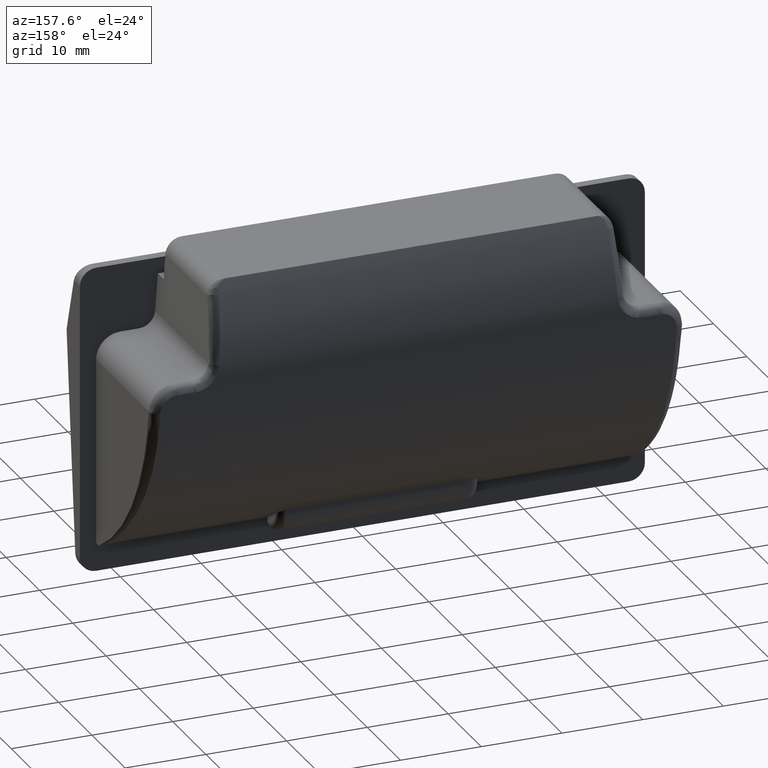
[diagram: clean part render]
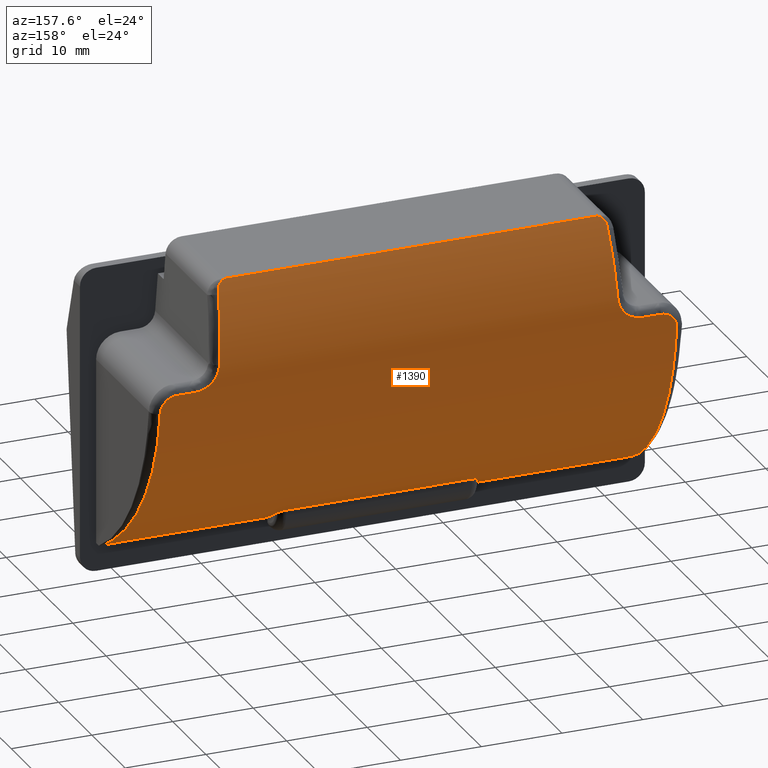
[diagram: same view with one face highlighted and labeled with its STEP entity id]
A machine part, auxiliary view. The second image highlights one B-rep face of the part: STEP entity #1390.
In plain terms, the highlighted cylindrical surface (partial cylindrical patch) has radius 29 mm, axis along (1, 0, 0).
Its self-contained STEP definition (entity closure, byte-faithful):
#11 = B_SPLINE_CURVE_WITH_KNOTS ( 'NONE', 3,
 ( #2369, #1271, #1049, #2891 ),
 .UNSPECIFIED., .F., .F.,
 ( 4, 4 ),
 ( 0.0000000000000000000, 1.000000000000000000 ),
 .UNSPECIFIED. ) ;
#16 = VERTEX_POINT ( 'NONE', #2038 ) ;
#19 = CARTESIAN_POINT ( 'NONE',  ( -31.95291266319078000, 16.88713194363992200, 7.182553249082598500 ) ) ;
#23 = AXIS2_PLACEMENT_3D ( 'NONE', #3076, #1509, #3365 ) ;
#24 = CARTESIAN_POINT ( 'NONE',  ( 12.21166091157432200, 4.710566057356711400, -13.95155555584422800 ) ) ;
#30 = CARTESIAN_POINT ( 'NONE',  ( -30.53184120137667200, 16.97963351977682600, 8.657424461214773700 ) ) ;
#39 = CARTESIAN_POINT ( 'NONE',  ( 32.11404258966066300, 14.72338672482740100, -1.529581798516154200 ) ) ;
#47 = LINE ( 'NONE', #637, #2091 ) ;
#50 = CARTESIAN_POINT ( 'NONE',  ( 32.28286345691748200, 12.21477794852119000, -6.208333649131243500 ) ) ;
#63 = CARTESIAN_POINT ( 'NONE',  ( 32.45163762144779400, 9.694275203025688000, -9.494982778757318400 ) ) ;
#73 = CARTESIAN_POINT ( 'NONE',  ( 32.62939973371035800, 6.957162645490490700, -12.19599503632543500 ) ) ;
#84 = CARTESIAN_POINT ( 'NONE',  ( 32.81160905604316700, 4.031105423837402700, -14.41617165862395200 ) ) ;
#86 = VERTEX_POINT ( 'NONE', #3356 ) ;
#89 = CARTESIAN_POINT ( 'NONE',  ( 31.19129264545912500, 16.96413417251327600, 8.307638805768558400 ) ) ;
#92 = ORIENTED_EDGE ( 'NONE', *, *, #1429, .T. ) ;
#103 = CARTESIAN_POINT ( 'NONE',  ( 24.71104965647571600, 16.96557099976402200, 11.21398076254104100 ) ) ;
#117 = EDGE_CURVE ( 'NONE', #2813, #3223, #778, .T. ) ;
#118 = CARTESIAN_POINT ( 'NONE',  ( -23.80908886368097700, 14.82512925762879900, 20.76880479615257300 ) ) ;
#119 = ORIENTED_EDGE ( 'NONE', *, *, #1145, .T. ) ;
#125 = DIRECTION ( 'NONE',  ( 1.000000000000000000, 0.0000000000000000000, 0.0000000000000000000 ) ) ;
#135 = B_SPLINE_CURVE_WITH_KNOTS ( 'NONE', 3,
 ( #2628, #3183, #596, #730, #24, #2297, #2118, #2089, #1875, #1369 ),
 .UNSPECIFIED., .F., .F.,
 ( 4, 2, 2, 2, 4 ),
 ( 0.0000000000000000000, 0.0003475748237373923300, 0.0006951496474747846700, 0.001042724471212177000, 0.001390299294949569300 ),
 .UNSPECIFIED. ) ;
#142 = CARTESIAN_POINT ( 'NONE',  ( -24.08331774830000400, 15.07003408124208500, 20.15269190877806700 ) ) ;
#183 = CARTESIAN_POINT ( 'NONE',  ( -23.76518415291948800, 14.80304256392465100, 20.82245634079588100 ) ) ;
#195 = CARTESIAN_POINT ( 'NONE',  ( -23.85018555827948500, 14.84798300384807500, 20.71294729218091000 ) ) ;
#196 = CARTESIAN_POINT ( 'NONE',  ( 23.61280617936258600, 14.74136037077704700, 20.97051450264426700 ) ) ;
#197 = B_SPLINE_CURVE_WITH_KNOTS ( 'NONE', 3,
 ( #1783, #2595, #476, #424 ),
 .UNSPECIFIED., .F., .F.,
 ( 4, 4 ),
 ( 0.004033008306997767700, 0.004381374092590078300 ),
 .UNSPECIFIED. ) ;
#213 = CARTESIAN_POINT ( 'NONE',  ( 24.06434350478048900, 15.03562800222621300, 20.24173342122376700 ) ) ;
#221 = CARTESIAN_POINT ( 'NONE',  ( -26.92912246405380500, 16.98471192835364000, 8.807731987701449900 ) ) ;
#225 = CARTESIAN_POINT ( 'NONE',  ( 24.10960632816056300, 15.16115189211685200, 19.91230271457886400 ) ) ;
#273 = EDGE_CURVE ( 'NONE', #2927, #399, #2003, .T. ) ;
#282 = CARTESIAN_POINT ( 'NONE',  ( -31.75306737430176400, 16.92469019267689800, 7.658462533472178500 ) ) ;
#283 = CARTESIAN_POINT ( 'NONE',  ( 11.50000000000000000, 5.000000000000000000, -13.74468024894146000 ) ) ;
#291 = CARTESIAN_POINT ( 'NONE',  ( 32.02864613851882300, 16.09845712136423400, 2.549647856322993200 ) ) ;
#298 = CARTESIAN_POINT ( 'NONE',  ( -30.00000000000000000, 16.98149920066879700, 8.714285714285711700 ) ) ;
#303 = CARTESIAN_POINT ( 'NONE',  ( -12.46034320697891900, 4.278820596099710500, -14.25000000000000000 ) ) ;
#307 = EDGE_CURVE ( 'NONE', #2746, #3216, #135, .T. ) ;
#308 = CARTESIAN_POINT ( 'NONE',  ( 32.15162645866152500, 14.15821372346313600, -2.776543988494512200 ) ) ;
#322 = CARTESIAN_POINT ( 'NONE',  ( 32.30194767209810200, 11.93224741456896800, -6.628592032507931700 ) ) ;
#333 = CARTESIAN_POINT ( 'NONE',  ( 32.46035741133251000, 9.562250652395118100, -9.642517642330576100 ) ) ;
#335 = CARTESIAN_POINT ( 'NONE',  ( -965.0000000000000000, -12.00000000000000000, 9.750000000000000000 ) ) ;
#344 = CARTESIAN_POINT ( 'NONE',  ( 32.63183629114841700, 6.918899739141931300, -12.22897483480254300 ) ) ;
#356 = CARTESIAN_POINT ( 'NONE',  ( 32.81294261662463900, 4.009167447386076300, -14.43070688289443200 ) ) ;
#361 = CARTESIAN_POINT ( 'NONE',  ( 31.34303223630810500, 16.95746240479212800, 8.179240597949796400 ) ) ;
#379 = CARTESIAN_POINT ( 'NONE',  ( -24.00271650900424400, 14.96021580319112200, 20.43396784396972200 ) ) ;
#397 = CARTESIAN_POINT ( 'NONE',  ( -24.09924127671513700, 15.11360267802841800, 20.03847115075541700 ) ) ;
#399 = VERTEX_POINT ( 'NONE', #1848 ) ;
#408 = CARTESIAN_POINT ( 'NONE',  ( 24.12098332040800100, 15.25275747414725000, 19.66399062211139900 ) ) ;
#413 = VECTOR ( 'NONE', #3280, 1000.000000000000000 ) ;
#414 = CARTESIAN_POINT ( 'NONE',  ( -11.73346434532453700, 4.978960302707681900, -13.75993762511512700 ) ) ;
#424 = CARTESIAN_POINT ( 'NONE',  ( -12.50000000000000000, 3.990671635356090300, -14.44294154604226100 ) ) ;
#429 = EDGE_LOOP ( 'NONE', ( #2450, #1278, #1842, #1753, #1198, #119, #773, #945, #2253, #545, #1416, #2745, #1128, #2004 ) ) ;
#430 = CARTESIAN_POINT ( 'NONE',  ( -12.46034320697891900, 4.278820596099710500, -14.25000000000000000 ) ) ;
#440 = CARTESIAN_POINT ( 'NONE',  ( -12.29460761264741300, 4.643952063545832200, -13.99881320862940900 ) ) ;
#447 = CARTESIAN_POINT ( 'NONE',  ( -24.10117451386884100, 15.12028337692867000, 20.02084798626688700 ) ) ;
#453 = CARTESIAN_POINT ( 'NONE',  ( 12.49999999999999800, 4.089016381496108500, -14.37793917584290400 ) ) ;
#456 = VERTEX_POINT ( 'NONE', #2647 ) ;
#472 = CARTESIAN_POINT ( 'NONE',  ( -23.92036113545085700, 14.89171569219374900, 20.60534077749732900 ) ) ;
#474 = CARTESIAN_POINT ( 'NONE',  ( 23.68543334119199500, 14.76861697180211800, 20.90537214286049700 ) ) ;
#475 = FACE_BOUND ( 'NONE', #2055, .T. ) ;
#476 = CARTESIAN_POINT ( 'NONE',  ( -12.49999999999999800, 4.089016381496112000, -14.37793917584290200 ) ) ;
#488 = CARTESIAN_POINT ( 'NONE',  ( 24.08348658678875900, 15.07138028751181300, 20.14907365690289300 ) ) ;
#489 = CARTESIAN_POINT ( 'NONE',  ( 24.30873122316301500, 16.19509434949581800, 17.07358286200178900 ) ) ;
#495 = CARTESIAN_POINT ( 'NONE',  ( -26.20784074750366700, 16.99277893198053100, 9.086169219386183800 ) ) ;
#496 = EDGE_CURVE ( 'NONE', #2766, #1850, #2258, .T. ) ;
#502 = CARTESIAN_POINT ( 'NONE',  ( 24.11178695277438400, 15.17748986558259500, 19.86850459789398800 ) ) ;
#511 = EDGE_CURVE ( 'NONE', #1533, #16, #197, .T. ) ;
#542 = CARTESIAN_POINT ( 'NONE',  ( -24.68422603658460100, 16.94110280260950000, 11.59731387933632100 ) ) ;
#545 = ORIENTED_EDGE ( 'NONE', *, *, #3085, .T. ) ;
#566 = AXIS2_PLACEMENT_3D ( 'NONE', #335, #125, #1720 ) ;
#572 = CARTESIAN_POINT ( 'NONE',  ( -31.60907993598795300, 16.93955844163867000, 7.877903611952723000 ) ) ;
#582 = CARTESIAN_POINT ( 'NONE',  ( 32.05371114095701300, 15.67030596323330700, 1.063763981909010600 ) ) ;
#596 = CARTESIAN_POINT ( 'NONE',  ( 12.39188291027598200, 4.463274328694084600, -14.12406680611417900 ) ) ;
#598 = CARTESIAN_POINT ( 'NONE',  ( 32.17607335215345200, 13.79432857345542400, -3.503800709733886400 ) ) ;
#603 = CARTESIAN_POINT ( 'NONE',  ( 30.00000000000000000, 16.98149920066879700, 8.714285714285711700 ) ) ;
#608 = CARTESIAN_POINT ( 'NONE',  ( 32.30946901900814100, 11.82078133934077100, -6.789974679852006600 ) ) ;
#619 = CARTESIAN_POINT ( 'NONE',  ( 32.46308392693600100, 9.520935738926523200, -9.688354824100654700 ) ) ;
#629 = CARTESIAN_POINT ( 'NONE',  ( 32.65885336929373000, 6.494451735422766900, -12.59381996070980300 ) ) ;
#636 = CARTESIAN_POINT ( 'NONE',  ( 32.83398385827274500, 3.662929933386710200, -14.65975901037703200 ) ) ;
#637 = CARTESIAN_POINT ( 'NONE',  ( -965.0000000000000000, 1.749999999999800200, -15.78306679582390100 ) ) ;
#639 = CARTESIAN_POINT ( 'NONE',  ( -27.67641200000004900, 16.98149920066879700, 8.714285714285711700 ) ) ;
#640 = CARTESIAN_POINT ( 'NONE',  ( 31.81216507776774800, 16.92899497557620200, 7.682404768183261000 ) ) ;
#650 = CARTESIAN_POINT ( 'NONE',  ( -11.94681846608445000, 4.901788297318872400, -13.81547925356796300 ) ) ;
#654 = CARTESIAN_POINT ( 'NONE',  ( -23.86173498391703900, 14.85474288472054000, 20.69637673257400900 ) ) ;
#658 = CARTESIAN_POINT ( 'NONE',  ( 12.50000000000000000, 3.990671635356090300, -14.44294154604226100 ) ) ;
#671 = CARTESIAN_POINT ( 'NONE',  ( -23.98698066877844000, 14.94536068144231900, 20.47137784021243300 ) ) ;
#677 = CARTESIAN_POINT ( 'NONE',  ( -12.04390256050987400, 4.845983973977253000, -13.85550023249872200 ) ) ;
#678 = VERTEX_POINT ( 'NONE', #1882 ) ;
#687 = B_SPLINE_CURVE_WITH_KNOTS ( 'NONE', 3,
 ( #658, #453, #2198, #1230 ),
 .UNSPECIFIED., .F., .F.,
 ( 4, 4 ),
 ( 0.003874057956844452400, 0.004222423742436750400 ),
 .UNSPECIFIED. ) ;
#697 = CARTESIAN_POINT ( 'NONE',  ( -28.45094133333399700, 16.98149920066881800, 8.714285714285773900 ) ) ;
#717 = CARTESIAN_POINT ( 'NONE',  ( -12.40536749356234300, 4.468173727349621600, -14.12156476446137400 ) ) ;
#730 = CARTESIAN_POINT ( 'NONE',  ( 12.28199659304112900, 4.631315735382354000, -14.00731054632791700 ) ) ;
#752 = CARTESIAN_POINT ( 'NONE',  ( 23.78195788383472100, 14.81134697434145400, 20.80228942583458700 ) ) ;
#762 = VERTEX_POINT ( 'NONE', #542 ) ;
#763 = CARTESIAN_POINT ( 'NONE',  ( -24.09836578411482900, 15.11072232471070500, 20.04605973466837200 ) ) ;
#764 = CARTESIAN_POINT ( 'NONE',  ( 24.09225087912683700, 15.09254704148628300, 20.09379025712411600 ) ) ;
#772 = CARTESIAN_POINT ( 'NONE',  ( -25.34707218881500900, 17.00111477160131200, 9.825480866582387000 ) ) ;
#773 = ORIENTED_EDGE ( 'NONE', *, *, #3054, .T. ) ;
#778 = B_SPLINE_CURVE_WITH_KNOTS ( 'NONE', 3,
 ( #3080, #2830, #987, #1518, #3369, #1807, #196, #2073, #474, #2326, #752, #2582, #1001, #2843, #1262, #3101, #1535, #3380, #1820, #213, #2083, #488, #2340, #764, #2593, #1016, #2860, #1275, #3111, #1553, #3397, #1833, #225, #2099, #502, #2352, #779, #2608, #1029 ),
 .UNSPECIFIED., .F., .F.,
 ( 4, 2, 1, 2, 2, 2, 2, 1, 2, 2, 2, 2, 1, 2, 2, 1, 2, 2, 1, 2, 2, 4 ),
 ( 0.0000000000000000000, 0.1250000000000041600, 0.1875000000000070500, 0.2187500000000097100, 0.2500000000000123200, 0.3125000000000153800, 0.3750000000000183700, 0.4375000000000214300, 0.4687500000000248100, 0.5000000000000283100, 0.6250000000000295300, 0.6875000000000323100, 0.7187500000000328600, 0.7343750000000305300, 0.7500000000000283100, 0.7812500000000237600, 0.7968750000000191000, 0.8125000000000144300, 0.8437500000000062200, 0.8593750000000043300, 0.8750000000000023300, 1.000000000000000000 ),
 .UNSPECIFIED. ) ;
#779 = CARTESIAN_POINT ( 'NONE',  ( 24.11528229334470600, 15.20808360277571900, 19.78617452136797200 ) ) ;
#788 = CARTESIAN_POINT ( 'NONE',  ( -23.95117058711397100, 14.91487845313566600, 20.54773745668845600 ) ) ;
#806 = CARTESIAN_POINT ( 'NONE',  ( -32.09788617139341200, 14.97129753416764300, -0.9077459231806712700 ) ) ;
#836 = CARTESIAN_POINT ( 'NONE',  ( -31.48132762181732100, 16.94935969463998800, 8.036245458960326700 ) ) ;
#842 = CARTESIAN_POINT ( 'NONE',  ( 32.07379667361851700, 15.34675883628700500, 0.09606117074035988600 ) ) ;
#857 = CARTESIAN_POINT ( 'NONE',  ( 32.18212552046202300, 13.70448802310387000, -3.676826752820423900 ) ) ;
#860 = VERTEX_POINT ( 'NONE', #3025 ) ;
#865 = VERTEX_POINT ( 'NONE', #1216 ) ;
#868 = CARTESIAN_POINT ( 'NONE',  ( 32.31180247687352400, 11.78618835081953100, -6.839682637304408200 ) ) ;
#876 = CARTESIAN_POINT ( 'NONE',  ( 32.51554247061573500, 8.723280048828195600, -10.54566524191651000 ) ) ;
#883 = CARTESIAN_POINT ( 'NONE',  ( -32.95833394175724600, 1.570747065032365400, -15.89156144936238700 ) ) ;
#884 = CARTESIAN_POINT ( 'NONE',  ( 32.73209515810720700, 5.325586523238374800, -13.50760397212717300 ) ) ;
#887 = CARTESIAN_POINT ( 'NONE',  ( 32.00000000000000000, 16.83306545036974800, 6.642857142857049100 ) ) ;
#888 = CARTESIAN_POINT ( 'NONE',  ( 30.26949005379553300, 16.98099991308894400, 8.700023603104996900 ) ) ;
#892 = CARTESIAN_POINT ( 'NONE',  ( 32.92195560511749600, 2.190590512532216500, -15.54813243106552000 ) ) ;
#895 = DIRECTION ( 'NONE',  ( -1.000000000000000000, -0.0000000000000000000, -0.0000000000000000000 ) ) ;
#896 = B_SPLINE_CURVE_WITH_KNOTS ( 'NONE', 3,
 ( #408, #489, #2594, #1017 ),
 .UNSPECIFIED., .F., .F.,
 ( 4, 4 ),
 ( 0.0000000000000000000, 1.000000000000000000 ),
 .UNSPECIFIED. ) ;
#900 = CARTESIAN_POINT ( 'NONE',  ( 32.00000000000000000, 16.83306545036974800, 6.642857142857049100 ) ) ;
#905 = CARTESIAN_POINT ( 'NONE',  ( -11.61616905759521300, 5.000000000000001800, -13.74468024894156300 ) ) ;
#932 = B_SPLINE_CURVE_WITH_KNOTS ( 'NONE', 3,
 ( #2719, #959, #697, #2454 ),
 .UNSPECIFIED., .F., .F.,
 ( 4, 4 ),
 ( 0.0000000000000000000, 1.000000000000000000 ),
 .UNSPECIFIED. ) ;
#940 = EDGE_CURVE ( 'NONE', #678, #2927, #2184, .T. ) ;
#945 = ORIENTED_EDGE ( 'NONE', *, *, #1787, .T. ) ;
#951 = CARTESIAN_POINT ( 'NONE',  ( -24.09229779577030300, 15.09199941075535300, 20.09530542644622700 ) ) ;
#959 = CARTESIAN_POINT ( 'NONE',  ( -29.22547066666695800, 16.98149920066881800, 8.714285714285773900 ) ) ;
#987 = CARTESIAN_POINT ( 'NONE',  ( 23.31903432358284800, 14.65720705462620500, 21.16912970070904600 ) ) ;
#993 = CARTESIAN_POINT ( 'NONE',  ( -27.48670032265225400, 16.98150256796866100, 8.714379938531637400 ) ) ;
#1001 = CARTESIAN_POINT ( 'NONE',  ( 23.86323839500636300, 14.85483105825580300, 20.69620743911150700 ) ) ;
#1005 = CARTESIAN_POINT ( 'NONE',  ( -32.11053063719536000, 14.77735347659213400, -1.391334043617856700 ) ) ;
#1008 = CYLINDRICAL_SURFACE ( 'NONE', #566, 29.00000000000000400 ) ;
#1016 = CARTESIAN_POINT ( 'NONE',  ( 24.09623156384014600, 15.10390168655728600, 20.06399976285370100 ) ) ;
#1017 = CARTESIAN_POINT ( 'NONE',  ( 24.68422703256134900, 16.94110279893154900, 11.59731393695759900 ) ) ;
#1021 = CARTESIAN_POINT ( 'NONE',  ( -24.80574183450164200, 16.98158878041468300, 10.84196858283410800 ) ) ;
#1029 = CARTESIAN_POINT ( 'NONE',  ( 24.12098332040800100, 15.25275747414725000, 19.66399062211139900 ) ) ;
#1032 = CARTESIAN_POINT ( 'NONE',  ( -32.12226334355073500, 14.59953566770989000, -1.806677427390380700 ) ) ;
#1033 = B_SPLINE_CURVE_WITH_KNOTS ( 'NONE', 3,
 ( #1544, #993, #1824, #221, #2090, #495, #2347, #772, #2601, #1021, #2868, #1281 ),
 .UNSPECIFIED., .F., .F.,
 ( 4, 2, 2, 2, 2, 4 ),
 ( 0.0000000000000000000, 0.1250000000000006400, 0.2500000000000012800, 0.5000000000000008900, 0.7500000000000004400, 1.000000000000000000 ),
 .UNSPECIFIED. ) ;
#1038 = ORIENTED_EDGE ( 'NONE', *, *, #2604, .F. ) ;
#1047 = CARTESIAN_POINT ( 'NONE',  ( -32.43573357075636200, 9.935529404512880800, -9.229905427259998500 ) ) ;
#1049 = CARTESIAN_POINT ( 'NONE',  ( -24.30873022450426600, 16.19509435607534100, 17.07358284391522600 ) ) ;
#1066 = CARTESIAN_POINT ( 'NONE',  ( -32.14692154667577000, 14.22804050156225800, -2.637826889430956900 ) ) ;
#1073 = CARTESIAN_POINT ( 'NONE',  ( -32.00000000000000000, 16.83306545036974800, 6.642857142857049100 ) ) ;
#1081 = EDGE_CURVE ( 'NONE', #86, #2491, #1545, .T. ) ;
#1083 = CARTESIAN_POINT ( 'NONE',  ( 32.00000000000000000, 16.83306545036974800, 6.642857142857049100 ) ) ;
#1088 = CARTESIAN_POINT ( 'NONE',  ( -31.24481942029659700, 16.96227986008475200, 8.269387364524011000 ) ) ;
#1090 = CARTESIAN_POINT ( 'NONE',  ( 12.50000000000000000, 1.749999999999800200, -15.78306679582390100 ) ) ;
#1096 = CARTESIAN_POINT ( 'NONE',  ( -32.16495073597828000, 13.95922318210752300, -3.192555309369975900 ) ) ;
#1098 = CARTESIAN_POINT ( 'NONE',  ( 32.08282886152537100, 15.20487904170183100, -0.2947654367081232700 ) ) ;
#1110 = CARTESIAN_POINT ( 'NONE',  ( -32.18518342426629900, 13.65912493573377200, -3.763315262153595700 ) ) ;
#1112 = CARTESIAN_POINT ( 'NONE',  ( 32.18399727844605000, 13.67671832146478300, -3.729854220209920500 ) ) ;
#1123 = CARTESIAN_POINT ( 'NONE',  ( 32.35859504236627500, 11.09148497491973900, -7.804249777394495000 ) ) ;
#1128 = ORIENTED_EDGE ( 'NONE', *, *, #940, .T. ) ;
#1132 = CARTESIAN_POINT ( 'NONE',  ( -32.18571791029253100, 13.65119848343781300, -3.778353586479034700 ) ) ;
#1133 = EDGE_CURVE ( 'NONE', #1283, #1533, #2022, .T. ) ;
#1134 = CARTESIAN_POINT ( 'NONE',  ( 32.57224422653657600, 7.849036956797247600, -11.39507193378362300 ) ) ;
#1145 = EDGE_CURVE ( 'NONE', #456, #2707, #932, .T. ) ;
#1150 = CARTESIAN_POINT ( 'NONE',  ( 32.77176840835620200, 4.683047141774293800, -13.97133197292585300 ) ) ;
#1155 = CARTESIAN_POINT ( 'NONE',  ( 30.53201813661847600, 16.97874650139098000, 8.639727829204497700 ) ) ;
#1159 = CARTESIAN_POINT ( 'NONE',  ( 33.00000000000000000, 0.8452325786653279700, -16.25000000000000000 ) ) ;
#1160 = CARTESIAN_POINT ( 'NONE',  ( -23.43349524725940500, 14.68661617363306800, 21.10009843067404100 ) ) ;
#1198 = ORIENTED_EDGE ( 'NONE', *, *, #2445, .T. ) ;
#1216 = CARTESIAN_POINT ( 'NONE',  ( -12.50000000000000000, 1.749999999999800200, -15.78306679582390100 ) ) ;
#1230 = CARTESIAN_POINT ( 'NONE',  ( 12.46034320697891900, 4.278820596099710500, -14.25000000000000000 ) ) ;
#1256 = CARTESIAN_POINT ( 'NONE',  ( -32.18686987823741700, 13.63411693483496200, -3.810692584404753400 ) ) ;
#1262 = CARTESIAN_POINT ( 'NONE',  ( 23.93094453379758600, 14.89963698300829300, 20.58558759486476900 ) ) ;
#1271 = CARTESIAN_POINT ( 'NONE',  ( -24.49647813054460200, 16.76551336731867500, 14.34820096714916800 ) ) ;
#1275 = CARTESIAN_POINT ( 'NONE',  ( 24.10194113637601600, 15.12298412612033800, 20.01373977212748300 ) ) ;
#1278 = ORIENTED_EDGE ( 'NONE', *, *, #1991, .T. ) ;
#1279 = CARTESIAN_POINT ( 'NONE',  ( -32.18860220030714500, 13.60843336212197100, -3.859205940745189100 ) ) ;
#1281 = CARTESIAN_POINT ( 'NONE',  ( -24.68422603658460100, 16.94110280260950000, 11.59731387933632100 ) ) ;
#1283 = VERTEX_POINT ( 'NONE', #2054 ) ;
#1293 = CARTESIAN_POINT ( 'NONE',  ( -32.23339931288334300, 12.94584447670199300, -5.041786039647865500 ) ) ;
#1301 = CARTESIAN_POINT ( 'NONE',  ( -24.11492152065293800, 15.20592182200243200, 19.79198515574842100 ) ) ;
#1317 = EDGE_CURVE ( 'NONE', #860, #3148, #2577, .T. ) ;
#1318 = CARTESIAN_POINT ( 'NONE',  ( -32.20823897334575700, 13.31770558223269800, -4.393407036273936600 ) ) ;
#1332 = ORIENTED_EDGE ( 'NONE', *, *, #511, .T. ) ;
#1345 = CARTESIAN_POINT ( 'NONE',  ( -32.26538173475830700, 12.47334413442856300, -5.819964369642259600 ) ) ;
#1349 = CARTESIAN_POINT ( 'NONE',  ( -31.02646058479976800, 16.96949544824918000, 8.419802233061185200 ) ) ;
#1354 = CARTESIAN_POINT ( 'NONE',  ( -32.28819502803330000, 12.13621625080715600, -6.338480330854694400 ) ) ;
#1357 = CARTESIAN_POINT ( 'NONE',  ( 32.08504407244447500, 15.17030193599934400, -0.3878048388614701000 ) ) ;
#1368 = CARTESIAN_POINT ( 'NONE',  ( -32.31325953037391900, 11.76458455272181600, -6.870616952640507900 ) ) ;
#1369 = CARTESIAN_POINT ( 'NONE',  ( 11.50000000000000000, 5.000000000000000000, -13.74468024894146000 ) ) ;
#1371 = CARTESIAN_POINT ( 'NONE',  ( 32.22273675438671600, 13.10336947189988000, -4.782350283122942100 ) ) ;
#1386 = CARTESIAN_POINT ( 'NONE',  ( 32.40941416209963700, 10.33083591897525500, -8.754872280282226500 ) ) ;
#1388 = VERTEX_POINT ( 'NONE', #1454 ) ;
#1390 = ADVANCED_FACE ( 'NONE', ( #475, #2427 ), #1008, .T. ) ;
#1394 = CARTESIAN_POINT ( 'NONE',  ( -32.08885943712257900, 15.11093444546394300, -0.5456112022715115000 ) ) ;
#1395 = CARTESIAN_POINT ( 'NONE',  ( 32.60580639993244700, 7.326731991402564100, -11.87225593557728400 ) ) ;
#1404 = CARTESIAN_POINT ( 'NONE',  ( 32.79863388417479100, 4.244209164365520900, -14.27369282591893200 ) ) ;
#1409 = CARTESIAN_POINT ( 'NONE',  ( 30.72710780155521300, 16.97606526171638600, 8.571692544016764600 ) ) ;
#1416 = ORIENTED_EDGE ( 'NONE', *, *, #117, .T. ) ;
#1428 = CARTESIAN_POINT ( 'NONE',  ( 23.12358800000004800, 14.62235902394826000, 21.25000000000000000 ) ) ;
#1429 = EDGE_CURVE ( 'NONE', #860, #2746, #687, .T. ) ;
#1437 = CARTESIAN_POINT ( 'NONE',  ( -24.02507341165736700, 14.98268030691284200, 20.37722464191181300 ) ) ;
#1442 = CARTESIAN_POINT ( 'NONE',  ( 27.67641300000000000, 16.98149920066879700, 8.714285714285711700 ) ) ;
#1454 = CARTESIAN_POINT ( 'NONE',  ( 33.00000000000000000, 0.8452325786653279700, -16.25000000000000000 ) ) ;
#1459 = CARTESIAN_POINT ( 'NONE',  ( -24.05905919212332100, 15.02805201798686800, 20.26116046824442000 ) ) ;
#1509 = DIRECTION ( 'NONE',  ( -1.000000000000000000, -0.0000000000000000000, -0.0000000000000000000 ) ) ;
#1517 = CARTESIAN_POINT ( 'NONE',  ( -24.04368974125363000, 15.00567876394550600, 20.31859267260551500 ) ) ;
#1518 = CARTESIAN_POINT ( 'NONE',  ( 23.45077007842687800, 14.69052392891323100, 21.09093184746372200 ) ) ;
#1519 = CARTESIAN_POINT ( 'NONE',  ( -32.08676767984025700, 15.14345456861964200, -0.4594668332559334600 ) ) ;
#1533 = VERTEX_POINT ( 'NONE', #303 ) ;
#1535 = CARTESIAN_POINT ( 'NONE',  ( 23.96177817040764100, 14.92351274426337000, 20.52612400494659500 ) ) ;
#1544 = CARTESIAN_POINT ( 'NONE',  ( -27.67641200000004900, 16.98149920066879700, 8.714285714285711700 ) ) ;
#1545 = B_SPLINE_CURVE_WITH_KNOTS ( 'NONE', 3,
 ( #1975, #2485, #1301, #1806, #1732, #1780, #2581, #1770, #447, #397, #763, #951, #142, #1725, #1741, #1459, #1565, #1517, #1437, #379, #671, #1551, #788, #472, #1985, #654, #195, #118, #183, #1819, #2523, #2495, #2351, #2339, #2256, #2002, #1160, #2275, #1960, #3364 ),
 .UNSPECIFIED., .F., .F.,
 ( 4, 2, 2, 2, 2, 2, 1, 1, 2, 2, 1, 2, 2, 1, 2, 2, 1, 2, 2, 1, 2, 2, 4 ),
 ( 0.0000000000000000000, 0.1249999999999582600, 0.1874999999999412700, 0.2187499999999357700, 0.2343749999999349100, 0.2499999999999340500, 0.3124999999999397700, 0.3437499999999460400, 0.3593749999999461000, 0.3749999999999461500, 0.4374999999999439900, 0.4687499999999429300, 0.4999999999999418200, 0.5624999999999436000, 0.5937499999999468200, 0.6249999999999500400, 0.6874999999999571500, 0.7187499999999609200, 0.7499999999999646900, 0.8124999999999721300, 0.8437499999999775700, 0.8749999999999829000, 1.000000000000000000 ),
 .UNSPECIFIED. ) ;
#1551 = CARTESIAN_POINT ( 'NONE',  ( -23.97941166274347000, 14.93859375834012800, 20.48837140379201900 ) ) ;
#1553 = CARTESIAN_POINT ( 'NONE',  ( 24.10577162503311400, 15.13990725335959700, 19.96888095043698300 ) ) ;
#1556 = CARTESIAN_POINT ( 'NONE',  ( -32.08638508796664700, 15.14940901070201200, -0.4436247314269767800 ) ) ;
#1558 = CARTESIAN_POINT ( 'NONE',  ( -32.31389655085074300, 11.75513856594774100, -6.884113112420550400 ) ) ;
#1565 = CARTESIAN_POINT ( 'NONE',  ( -24.05712525310776000, 15.02512744729560600, 20.26867868335819300 ) ) ;
#1583 = CARTESIAN_POINT ( 'NONE',  ( -32.31529735817435500, 11.73436518041930300, -6.913740180604082600 ) ) ;
#1622 = CARTESIAN_POINT ( 'NONE',  ( -32.31740282563262000, 11.70313922333355600, -6.958186267698564200 ) ) ;
#1631 = CARTESIAN_POINT ( 'NONE',  ( -30.85076084074087200, 16.97373408888828900, 8.515683200338834500 ) ) ;
#1635 = VECTOR ( 'NONE', #1688, 1000.000000000000000 ) ;
#1637 = CARTESIAN_POINT ( 'NONE',  ( -32.32234537834563100, 11.62981652687872700, -7.061930695507650000 ) ) ;
#1639 = CARTESIAN_POINT ( 'NONE',  ( 32.09919462574606500, 14.94989028896712000, -0.9761256161620404100 ) ) ;
#1657 = CARTESIAN_POINT ( 'NONE',  ( 32.26575304916004000, 12.46783909599735400, -5.819855034171442100 ) ) ;
#1668 = CARTESIAN_POINT ( 'NONE',  ( 32.43956703876849400, 9.876744803901649700, -9.288154550027602600 ) ) ;
#1680 = CARTESIAN_POINT ( 'NONE',  ( 32.62599753992973500, 7.010559684245381900, -12.14980513450384900 ) ) ;
#1688 = DIRECTION ( 'NONE',  ( 1.000000000000000000, 0.0000000000000000000, 0.0000000000000000000 ) ) ;
#1696 = CARTESIAN_POINT ( 'NONE',  ( -32.81803509572033300, 3.925341268151046200, -14.48602051514421200 ) ) ;
#1698 = CARTESIAN_POINT ( 'NONE',  ( 32.80974502720496800, 4.061758930992390000, -14.39582102079099400 ) ) ;
#1704 = CARTESIAN_POINT ( 'NONE',  ( 31.02940317933063600, 16.96971076341938600, 8.422688809763236900 ) ) ;
#1719 = EDGE_CURVE ( 'NONE', #16, #865, #2423, .T. ) ;
#1720 = DIRECTION ( 'NONE',  ( 0.0000000000000000000, 0.0000000000000000000, -1.000000000000000000 ) ) ;
#1725 = CARTESIAN_POINT ( 'NONE',  ( -24.06986871870174800, 15.04532386913093600, 20.21666640411309100 ) ) ;
#1732 = CARTESIAN_POINT ( 'NONE',  ( -24.10982666635293400, 15.15961556620444400, 19.91644372063732900 ) ) ;
#1741 = CARTESIAN_POINT ( 'NONE',  ( -24.06346792582751300, 15.03493383612475900, 20.24344761041599100 ) ) ;
#1753 = ORIENTED_EDGE ( 'NONE', *, *, #496, .T. ) ;
#1770 = CARTESIAN_POINT ( 'NONE',  ( -24.10208918140728700, 15.12364225517692300, 20.01197456918990300 ) ) ;
#1780 = CARTESIAN_POINT ( 'NONE',  ( -24.10618721833770200, 15.14062492423406400, 19.96698598556688600 ) ) ;
#1783 = CARTESIAN_POINT ( 'NONE',  ( -12.46034320697891900, 4.278820596099710500, -14.25000000000000000 ) ) ;
#1787 = EDGE_CURVE ( 'NONE', #762, #86, #11, .T. ) ;
#1794 = CARTESIAN_POINT ( 'NONE',  ( -32.46474636302329500, 9.495735464020858900, -9.716220784894781900 ) ) ;
#1806 = CARTESIAN_POINT ( 'NONE',  ( -24.11190448479751300, 15.17437285243940300, 19.87691325577046100 ) ) ;
#1807 = CARTESIAN_POINT ( 'NONE',  ( 23.57384392369564800, 14.72793407580990000, 21.00245929665936000 ) ) ;
#1811 = CARTESIAN_POINT ( 'NONE',  ( -32.46543531374415200, 9.485289535579569900, -9.727747517495135600 ) ) ;
#1819 = CARTESIAN_POINT ( 'NONE',  ( -23.71706741791346600, 14.78214552502515600, 20.87281427468121500 ) ) ;
#1820 = CARTESIAN_POINT ( 'NONE',  ( 24.03329666529619500, 14.99135947726209600, 20.35533451600381100 ) ) ;
#1822 = CARTESIAN_POINT ( 'NONE',  ( -32.48613797349868500, 9.170902971915939600, -10.06991771483928800 ) ) ;
#1824 = CARTESIAN_POINT ( 'NONE',  ( -27.29930007999343600, 16.98218904100134500, 8.733086548270272000 ) ) ;
#1833 = CARTESIAN_POINT ( 'NONE',  ( 24.10815274957833800, 15.15234425506145800, 19.93579617826365800 ) ) ;
#1842 = ORIENTED_EDGE ( 'NONE', *, *, #2108, .F. ) ;
#1848 = CARTESIAN_POINT ( 'NONE',  ( 30.00000000000000000, 16.98149920066879700, 8.714285714285711700 ) ) ;
#1850 = VERTEX_POINT ( 'NONE', #3188 ) ;
#1861 = CARTESIAN_POINT ( 'NONE',  ( -32.46700796882515000, 9.461440590692435000, -9.754022214793339500 ) ) ;
#1874 = CARTESIAN_POINT ( 'NONE',  ( -32.22311142526452000, 13.09781511345535800, -4.782322274852390400 ) ) ;
#1875 = CARTESIAN_POINT ( 'NONE',  ( 11.61720194651514900, 5.000000000000001800, -13.74468024894147400 ) ) ;
#1880 = B_SPLINE_CURVE_WITH_KNOTS ( 'NONE', 3,
 ( #1083, #2926, #1902, #291, #2166, #582, #2416, #842, #2678, #1098, #2941, #1357, #3201, #1639, #39, #1914, #308, #2178, #598, #2430, #857, #2691, #1112, #2956, #1371, #3214, #1657, #50, #1924, #322, #2194, #608, #2440, #868, #2706, #1123, #2964, #1386, #3226, #1668, #63, #1936, #333, #2203, #619, #2449, #876, #2715, #1134, #2972, #1395, #3240, #1680, #73, #1950, #344, #2212, #629, #2464, #884, #2726, #1150, #2984, #1404, #3251, #1698, #84, #1959, #356, #2221, #636, #2472, #892, #2733, #1159 ),
 .UNSPECIFIED., .F., .F.,
 ( 4, 2, 2, 1, 1, 1, 1, 2, 2, 2, 1, 1, 1, 1, 2, 2, 2, 2, 1, 1, 1, 2, 2, 2, 2, 1, 1, 1, 2, 2, 2, 2, 1, 1, 1, 1, 2, 2, 2, 2, 1, 1, 1, 1, 1, 2, 2, 2, 4 ),
 ( 0.0000000000000000000, 0.1249999999999963100, 0.1874999999999944500, 0.2187499999999935300, 0.2343749999999930600, 0.2421874999999927800, 0.2460937499999926200, 0.2480468749999925300, 0.2499999999999924500, 0.3124999999999887900, 0.3437499999999869500, 0.3593749999999861200, 0.3671874999999857300, 0.3710937499999855100, 0.3730468749999854000, 0.3749999999999852900, 0.4374999999999811800, 0.4687499999999791800, 0.4843749999999782400, 0.4921874999999778500, 0.4960937499999776800, 0.4980468749999776300, 0.4999999999999775700, 0.5624999999999762400, 0.5937499999999756900, 0.6093749999999753500, 0.6171874999999752400, 0.6210937499999750200, 0.6230468749999749100, 0.6249999999999749100, 0.6874999999999752400, 0.7187499999999755800, 0.7343749999999756900, 0.7421874999999756900, 0.7460937499999758000, 0.7480468749999758000, 0.7490234374999759100, 0.7499999999999760200, 0.8124999999999883400, 0.8437499999999945600, 0.8593749999999974500, 0.8671874999999990000, 0.8710937499999997800, 0.8730468750000002200, 0.8740234375000004400, 0.8745117187500004400, 0.8750000000000005600, 0.9375000000000003300, 1.000000000000000000 ),
 .UNSPECIFIED. ) ;
#1882 = CARTESIAN_POINT ( 'NONE',  ( 24.68422703256134900, 16.94110279893154900, 11.59731393695759900 ) ) ;
#1885 = CARTESIAN_POINT ( 'NONE',  ( -32.46937148028364800, 9.425591185590823400, -9.793445301206386200 ) ) ;
#1886 = CARTESIAN_POINT ( 'NONE',  ( 30.00000000000000000, 16.98149920066879700, 8.714285714285711700 ) ) ;
#1893 = CARTESIAN_POINT ( 'NONE',  ( -31.81184165529781500, 16.91616297842486800, 7.543178237331885000 ) ) ;
#1902 = CARTESIAN_POINT ( 'NONE',  ( 32.00716176351890100, 16.51343347777986600, 4.322517555568122600 ) ) ;
#1906 = CARTESIAN_POINT ( 'NONE',  ( -30.26951556375396600, 16.98149574734575000, 8.714189082925855700 ) ) ;
#1912 = CARTESIAN_POINT ( 'NONE',  ( -32.49597244162988800, 9.021046652179679300, -10.22841614604942400 ) ) ;
#1914 = CARTESIAN_POINT ( 'NONE',  ( 32.13870079278569800, 14.35189298340504900, -2.360731897358336900 ) ) ;
#1921 = CARTESIAN_POINT ( 'NONE',  ( -32.37121103321782600, 10.90278720953912000, -8.041976532501838200 ) ) ;
#1924 = CARTESIAN_POINT ( 'NONE',  ( 32.29155856039885500, 12.08611905815965500, -6.402445169391259400 ) ) ;
#1936 = CARTESIAN_POINT ( 'NONE',  ( 32.45773253155248000, 9.602012647900169300, -9.598276377354684600 ) ) ;
#1942 = CARTESIAN_POINT ( 'NONE',  ( -965.0000000000000000, 5.000000000000000000, -13.74468024894146000 ) ) ;
#1948 = CARTESIAN_POINT ( 'NONE',  ( -32.81573775007417000, 3.963166424170680100, -14.46110500753159100 ) ) ;
#1950 = CARTESIAN_POINT ( 'NONE',  ( 32.63086121506565700, 6.934213531337522200, -12.21578384848360700 ) ) ;
#1952 = B_SPLINE_CURVE_WITH_KNOTS ( 'NONE', 3,
 ( #603, #2187, #888, #2730, #1155, #2990, #1409, #3256, #1704, #89, #1963, #361, #2228, #640, #2477, #900 ),
 .UNSPECIFIED., .F., .F.,
 ( 4, 2, 2, 2, 2, 2, 2, 4 ),
 ( 0.0000000000000000000, 0.1249999999999955600, 0.1874999999999933400, 0.2499999999999911200, 0.3749999999999860700, 0.4374999999999849000, 0.4999999999999861200, 1.000000000000000000 ),
 .UNSPECIFIED. ) ;
#1959 = CARTESIAN_POINT ( 'NONE',  ( 32.81240904335120900, 4.017945647305758400, -14.42489286335852100 ) ) ;
#1960 = CARTESIAN_POINT ( 'NONE',  ( -23.22487279622394900, 14.63820345476056200, 21.21332033690304500 ) ) ;
#1963 = CARTESIAN_POINT ( 'NONE',  ( 31.24322582577941500, 16.96206989896482800, 8.266618325731816000 ) ) ;
#1967 = CARTESIAN_POINT ( 'NONE',  ( -33.00000000000000000, 0.8452325786653279700, -16.25000000000000000 ) ) ;
#1975 = CARTESIAN_POINT ( 'NONE',  ( -24.12098232040795100, 15.25275747414725000, 19.66399062211134900 ) ) ;
#1985 = CARTESIAN_POINT ( 'NONE',  ( -23.88569911973731400, 14.86941498094542300, 20.66031244088049200 ) ) ;
#1987 = CARTESIAN_POINT ( 'NONE',  ( -965.0000000000000000, 0.8452325786653279700, -16.25000000000000000 ) ) ;
#1991 = EDGE_CURVE ( 'NONE', #2690, #1388, #1880, .T. ) ;
#2002 = CARTESIAN_POINT ( 'NONE',  ( -23.45343594143538000, 14.69199846352844800, 21.08743543540456900 ) ) ;
#2003 = B_SPLINE_CURVE_WITH_KNOTS ( 'NONE', 3,
 ( #3335, #2077, #2127, #1886 ),
 .UNSPECIFIED., .F., .F.,
 ( 4, 4 ),
 ( 0.0000000000000000000, 1.000000000000000000 ),
 .UNSPECIFIED. ) ;
#2004 = ORIENTED_EDGE ( 'NONE', *, *, #273, .T. ) ;
#2015 = CARTESIAN_POINT ( 'NONE',  ( 24.68422703256134900, 16.94110279893154900, 11.59731393695759900 ) ) ;
#2022 = B_SPLINE_CURVE_WITH_KNOTS ( 'NONE', 3,
 ( #2727, #905, #414, #650, #677, #440, #717, #430 ),
 .UNSPECIFIED., .F., .F.,
 ( 4, 2, 2, 4 ),
 ( 0.005469567697882447800, 0.005815504864637404200, 0.006161442031392360500, 0.006853316364902274100 ),
 .UNSPECIFIED. ) ;
#2037 = CARTESIAN_POINT ( 'NONE',  ( 25.75474965925132800, 16.99851521171996200, 9.427427249346141700 ) ) ;
#2038 = CARTESIAN_POINT ( 'NONE',  ( -12.50000000000000000, 3.990671635356090300, -14.44294154604226100 ) ) ;
#2054 = CARTESIAN_POINT ( 'NONE',  ( -11.50000000000000000, 5.000000000000000000, -13.74468024894146000 ) ) ;
#2055 = EDGE_LOOP ( 'NONE', ( #92, #2404, #1038, #2607, #1332, #3128, #3299, #3227 ) ) ;
#2063 = CARTESIAN_POINT ( 'NONE',  ( -32.52962353874679000, 8.506421688946048200, -10.75801697906572600 ) ) ;
#2073 = CARTESIAN_POINT ( 'NONE',  ( 23.63307985846796200, 14.74872117566373200, 20.95295545933253600 ) ) ;
#2074 = CARTESIAN_POINT ( 'NONE',  ( -32.00000000000000000, 16.83306545036974800, 6.642857142857049100 ) ) ;
#2076 = CARTESIAN_POINT ( 'NONE',  ( -32.92195729284426900, 2.190561918094061900, -15.54814847064577400 ) ) ;
#2077 = CARTESIAN_POINT ( 'NONE',  ( 28.45094200000001500, 16.98149920066881800, 8.714285714285773900 ) ) ;
#2083 = CARTESIAN_POINT ( 'NONE',  ( 24.07331945752848800, 15.05083235701246200, 20.20246014887918300 ) ) ;
#2089 = CARTESIAN_POINT ( 'NONE',  ( 11.73448002499423900, 4.978732019571873800, -13.76010290391662000 ) ) ;
#2090 = CARTESIAN_POINT ( 'NONE',  ( -26.74489835451951000, 16.98656508993616400, 8.864268854058938300 ) ) ;
#2091 = VECTOR ( 'NONE', #895, 1000.000000000000000 ) ;
#2099 = CARTESIAN_POINT ( 'NONE',  ( 24.11093178573054300, 15.17083844613513400, 19.88635184992467200 ) ) ;
#2108 = EDGE_CURVE ( 'NONE', #2766, #1388, #3138, .T. ) ;
#2118 = CARTESIAN_POINT ( 'NONE',  ( 11.94797963693912600, 4.901227769847569200, -13.81588168129758800 ) ) ;
#2126 = CARTESIAN_POINT ( 'NONE',  ( -32.57185986687172600, 7.855950068631276700, -11.39496655154886000 ) ) ;
#2127 = CARTESIAN_POINT ( 'NONE',  ( 29.22547100000002000, 16.98149920066881800, 8.714285714285773900 ) ) ;
#2138 = CARTESIAN_POINT ( 'NONE',  ( -32.20094259226369400, 13.42563463304881200, -4.199019184889335700 ) ) ;
#2158 = CARTESIAN_POINT ( 'NONE',  ( -31.64728003525988600, 16.93602371774177900, 7.823970577757880700 ) ) ;
#2166 = CARTESIAN_POINT ( 'NONE',  ( 32.03759793600335800, 15.93992579227830200, 1.955985645016716600 ) ) ;
#2170 = CARTESIAN_POINT ( 'NONE',  ( -23.12358699999990100, 14.62235902394829900, 21.25000000000000000 ) ) ;
#2177 = CARTESIAN_POINT ( 'NONE',  ( -32.60156326194226800, 7.394501680363078800, -11.82017383497065100 ) ) ;
#2178 = CARTESIAN_POINT ( 'NONE',  ( 32.16775038973145200, 13.91802319369308800, -3.261466585897051300 ) ) ;
#2184 = B_SPLINE_CURVE_WITH_KNOTS ( 'NONE', 3,
 ( #2015, #103, #3396, #3355, #3289, #3295, #3315, #2037, #2249, #2291, #3266, #3019, #3109, #3010 ),
 .UNSPECIFIED., .F., .F.,
 ( 4, 2, 2, 2, 2, 2, 4 ),
 ( 0.0000000000000000000, 0.2500000000000007200, 0.3750000000000005600, 0.5000000000000004400, 0.6250000000000003300, 0.7500000000000002200, 1.000000000000000000 ),
 .UNSPECIFIED. ) ;
#2187 = CARTESIAN_POINT ( 'NONE',  ( 30.13581609935504700, 16.98149747999616500, 8.714237566187499300 ) ) ;
#2194 = CARTESIAN_POINT ( 'NONE',  ( 32.30720343402357700, 11.85436374433416300, -6.741574435635131500 ) ) ;
#2198 = CARTESIAN_POINT ( 'NONE',  ( 12.48753639858158100, 4.185158947007225000, -14.31352921592964300 ) ) ;
#2201 = CARTESIAN_POINT ( 'NONE',  ( -32.51593122345196500, 8.716299639415202800, -10.54583665388882500 ) ) ;
#2203 = CARTESIAN_POINT ( 'NONE',  ( 32.46211017017471800, 9.535693492926871100, -9.672005547407390900 ) ) ;
#2212 = CARTESIAN_POINT ( 'NONE',  ( 32.63240561141734700, 6.909956751742672800, -12.23666884047681200 ) ) ;
#2221 = CARTESIAN_POINT ( 'NONE',  ( 32.81331634925187800, 4.003018065017951000, -14.43477667465044200 ) ) ;
#2228 = CARTESIAN_POINT ( 'NONE',  ( 31.38982167715666800, 16.95498587976634400, 8.134042305523953700 ) ) ;
#2249 = CARTESIAN_POINT ( 'NONE',  ( 25.90199945636040700, 16.99682569723430000, 9.308540212414072800 ) ) ;
#2253 = ORIENTED_EDGE ( 'NONE', *, *, #1081, .T. ) ;
#2256 = CARTESIAN_POINT ( 'NONE',  ( -23.49477755761926200, 14.70369249595304400, 21.05986433652292100 ) ) ;
#2258 = B_SPLINE_CURVE_WITH_KNOTS ( 'NONE', 3,
 ( #3146, #883, #2076, #3224, #3155, #3105, #2971, #2983, #2914, #1696, #1948, #2849, #2704, #2627, #2637, #2599, #2572, #2448, #2723, #2436, #2428, #2380, #2345, #2414, #2399, #2365, #2332, #2177, #2126, #2063, #2201, #1912, #1822, #2664, #1885, #1861, #1811, #1794, #1047, #2388, #1921, #2463, #3440, #2867, #1637, #1622, #1583, #1558, #1368, #1354, #1345, #1293, #1874, #1318, #2138, #2316, #1279, #1256, #1132, #1110, #1096, #1066, #1032, #1005, #806, #3129, #1394, #2536, #1519, #1556, #2396, #2684, #2074 ),
 .UNSPECIFIED., .F., .F.,
 ( 4, 2, 2, 2, 1, 1, 1, 1, 2, 2, 2, 2, 1, 1, 1, 1, 2, 2, 2, 2, 1, 1, 1, 2, 2, 2, 2, 1, 1, 1, 2, 2, 2, 2, 1, 1, 1, 2, 2, 2, 1, 1, 1, 1, 2, 2, 4 ),
 ( 0.0000000000000000000, 0.06249999999998498400, 0.09374999999997744900, 0.1093749999999736700, 0.1171874999999717400, 0.1210937499999707200, 0.1230468749999701500, 0.1240234374999699700, 0.1245117187499698700, 0.1249999999999697900, 0.1874999999999672500, 0.2187499999999660300, 0.2343749999999654400, 0.2421874999999651100, 0.2460937499999649200, 0.2480468749999648600, 0.2490234374999648300, 0.2499999999999648600, 0.3124999999999647500, 0.3437499999999646900, 0.3593749999999646900, 0.3671874999999646400, 0.3710937499999646400, 0.3730468749999646900, 0.3749999999999648100, 0.4374999999999706300, 0.4687499999999736900, 0.4843749999999753000, 0.4921874999999759600, 0.4960937499999762400, 0.4980468749999763000, 0.4999999999999764600, 0.5624999999999789100, 0.5937499999999801300, 0.6093749999999807900, 0.6171874999999811300, 0.6210937499999813500, 0.6230468749999813500, 0.6249999999999812400, 0.6874999999999842300, 0.7187499999999857900, 0.7343749999999864600, 0.7421874999999867900, 0.7460937499999870100, 0.7480468749999871200, 0.7499999999999872300, 1.000000000000000000 ),
 .UNSPECIFIED. ) ;
#2264 = EDGE_CURVE ( 'NONE', #3223, #678, #896, .T. ) ;
#2275 = CARTESIAN_POINT ( 'NONE',  ( -23.32065270945693000, 14.65774231388048700, 21.16789164791808600 ) ) ;
#2291 = CARTESIAN_POINT ( 'NONE',  ( 26.21691393158610600, 16.99291975711217600, 9.100853469933587900 ) ) ;
#2297 = CARTESIAN_POINT ( 'NONE',  ( 12.04586388995332900, 4.844628905836923800, -13.85646586739946100 ) ) ;
#2316 = CARTESIAN_POINT ( 'NONE',  ( -32.19267487620334100, 13.54807544328993700, -3.972436568081892300 ) ) ;
#2326 = CARTESIAN_POINT ( 'NONE',  ( 23.71864539403349100, 14.78245093953810300, 20.87212883409368300 ) ) ;
#2327 = LINE ( 'NONE', #1942, #1635 ) ;
#2332 = CARTESIAN_POINT ( 'NONE',  ( -32.63330076934460800, 6.895893471352980700, -12.24875706119148300 ) ) ;
#2339 = CARTESIAN_POINT ( 'NONE',  ( -23.55562239634261700, 14.72176843701594100, 21.01715736749138900 ) ) ;
#2340 = CARTESIAN_POINT ( 'NONE',  ( 24.08816934086945200, 15.08183244383275000, 20.12183894134339800 ) ) ;
#2345 = CARTESIAN_POINT ( 'NONE',  ( -32.63853709922511800, 6.813581234576298900, -12.31923604959560600 ) ) ;
#2347 = CARTESIAN_POINT ( 'NONE',  ( -25.89062437623905000, 16.99764353956087200, 9.295000539148142900 ) ) ;
#2351 = CARTESIAN_POINT ( 'NONE',  ( -23.61296447840822300, 14.74143022250946600, 20.97039162340574600 ) ) ;
#2352 = CARTESIAN_POINT ( 'NONE',  ( 24.11226405274774400, 15.18147448707352800, 19.85779485232463100 ) ) ;
#2365 = CARTESIAN_POINT ( 'NONE',  ( -32.63362682363365500, 6.890770200212425100, -12.25315596869153900 ) ) ;
#2369 = CARTESIAN_POINT ( 'NONE',  ( -24.68422603658460100, 16.94110280260950000, 11.59731387933632100 ) ) ;
#2376 = B_SPLINE_CURVE_WITH_KNOTS ( 'NONE', 3,
 ( #1073, #2656, #19, #1893, #282, #2158, #572, #2408, #836, #2671, #1088, #2931, #1349, #3192, #1631, #30, #1906, #298 ),
 .UNSPECIFIED., .F., .F.,
 ( 4, 2, 2, 2, 2, 2, 2, 2, 4 ),
 ( 0.0000000000000000000, 0.2500000000000010500, 0.3750000000000014400, 0.4375000000000006100, 0.4999999999999997800, 0.6249999999999968900, 0.6874999999999966700, 0.7499999999999964500, 1.000000000000000000 ),
 .UNSPECIFIED. ) ;
#2380 = CARTESIAN_POINT ( 'NONE',  ( -32.64431731853968400, 6.722626281575983900, -12.39659017364645300 ) ) ;
#2388 = CARTESIAN_POINT ( 'NONE',  ( -32.40905283009288200, 10.33678354238198000, -8.755038896875417400 ) ) ;
#2396 = CARTESIAN_POINT ( 'NONE',  ( -32.02864624025263400, 16.04872650117698600, 1.956587916145818600 ) ) ;
#2399 = CARTESIAN_POINT ( 'NONE',  ( -32.63444263709118300, 6.877950098720871700, -12.26415615938990200 ) ) ;
#2404 = ORIENTED_EDGE ( 'NONE', *, *, #307, .T. ) ;
#2408 = CARTESIAN_POINT ( 'NONE',  ( -31.52680443159493300, 16.94618338765538500, 7.983292618631082000 ) ) ;
#2413 = AXIS2_PLACEMENT_3D ( 'NONE', #3259, #3272, #3285 ) ;
#2414 = CARTESIAN_POINT ( 'NONE',  ( -32.63566784710128800, 6.858694000054733000, -12.28066412206820200 ) ) ;
#2416 = CARTESIAN_POINT ( 'NONE',  ( 32.06243912061578500, 15.52754240303650800, 0.6172247463165656500 ) ) ;
#2423 = CIRCLE ( 'NONE', #23, 29.00000000000000400 ) ;
#2427 = FACE_OUTER_BOUND ( 'NONE', #429, .T. ) ;
#2428 = CARTESIAN_POINT ( 'NONE',  ( -32.65604461743724600, 6.537783125560707700, -12.55211428485736700 ) ) ;
#2430 = CARTESIAN_POINT ( 'NONE',  ( 32.18030008258629200, 13.73157631000883100, -3.624925968247270500 ) ) ;
#2436 = CARTESIAN_POINT ( 'NONE',  ( -32.66638263409537800, 6.374264366231446200, -12.68673205429650300 ) ) ;
#2440 = CARTESIAN_POINT ( 'NONE',  ( 32.31098232357283000, 11.79834774128785000, -6.822236747390810800 ) ) ;
#2445 = EDGE_CURVE ( 'NONE', #1850, #456, #2376, .T. ) ;
#2448 = CARTESIAN_POINT ( 'NONE',  ( -32.70198687432029800, 5.808450615214400000, -13.13997985110503700 ) ) ;
#2449 = CARTESIAN_POINT ( 'NONE',  ( 32.48893152554940400, 9.129120607530158100, -10.12161617267351100 ) ) ;
#2450 = ORIENTED_EDGE ( 'NONE', *, *, #3263, .T. ) ;
#2454 = CARTESIAN_POINT ( 'NONE',  ( -27.67641200000004900, 16.98149920066879700, 8.714285714285711700 ) ) ;
#2463 = CARTESIAN_POINT ( 'NONE',  ( -32.35896031994617800, 11.08547864308170400, -7.804157230458028700 ) ) ;
#2464 = CARTESIAN_POINT ( 'NONE',  ( 32.68692914248220700, 6.049939594349968500, -12.95612349641425700 ) ) ;
#2472 = CARTESIAN_POINT ( 'NONE',  ( 32.85978112595074700, 3.236610619110199300, -14.93226206075360300 ) ) ;
#2474 = CARTESIAN_POINT ( 'NONE',  ( 12.46034320697891900, 4.278820596099710500, -14.25000000000000000 ) ) ;
#2477 = CARTESIAN_POINT ( 'NONE',  ( 31.99991550387808200, 16.89327125276454600, 7.201543344539249600 ) ) ;
#2485 = CARTESIAN_POINT ( 'NONE',  ( -24.11765631013733100, 15.23542148451888400, 19.71164585388677200 ) ) ;
#2491 = VERTEX_POINT ( 'NONE', #2170 ) ;
#2495 = CARTESIAN_POINT ( 'NONE',  ( -23.66797138936871600, 14.76212104002699900, 20.92090851591438000 ) ) ;
#2523 = CARTESIAN_POINT ( 'NONE',  ( -23.68405358918845500, 14.76848253766369900, 20.90565591722290200 ) ) ;
#2536 = CARTESIAN_POINT ( 'NONE',  ( -32.08760251901815500, 15.13047000220319300, -0.4939219246157965900 ) ) ;
#2572 = CARTESIAN_POINT ( 'NONE',  ( -32.74715288994530500, 5.084096629655930700, -13.69145912571736200 ) ) ;
#2577 = CIRCLE ( 'NONE', #2413, 29.00000000000000400 ) ;
#2581 = CARTESIAN_POINT ( 'NONE',  ( -24.10467733090711900, 15.13377393952580600, 19.98516862493179500 ) ) ;
#2582 = CARTESIAN_POINT ( 'NONE',  ( 23.81193143755778200, 14.82640968663338700, 20.76567754577192900 ) ) ;
#2593 = CARTESIAN_POINT ( 'NONE',  ( 24.09483830111523200, 15.09974786817989500, 20.07491005092064600 ) ) ;
#2594 = CARTESIAN_POINT ( 'NONE',  ( 24.49647912786201300, 16.76551335938973300, 14.34820100521367800 ) ) ;
#2595 = CARTESIAN_POINT ( 'NONE',  ( -12.48753639858158100, 4.185158947007221500, -14.31352921592964700 ) ) ;
#2599 = CARTESIAN_POINT ( 'NONE',  ( -32.77929767315790600, 4.562801927589289300, -14.06445654527907900 ) ) ;
#2601 = CARTESIAN_POINT ( 'NONE',  ( -25.12988173982037300, 16.99959197577079800, 10.13542037019981600 ) ) ;
#2604 = EDGE_CURVE ( 'NONE', #1283, #3216, #2327, .T. ) ;
#2607 = ORIENTED_EDGE ( 'NONE', *, *, #1133, .T. ) ;
#2608 = CARTESIAN_POINT ( 'NONE',  ( 24.11699638782143000, 15.23197677718688900, 19.72111507542092200 ) ) ;
#2627 = CARTESIAN_POINT ( 'NONE',  ( -32.81379732941685700, 3.995103319814955700, -14.44001198552302700 ) ) ;
#2628 = CARTESIAN_POINT ( 'NONE',  ( 12.46034320697891900, 4.278820596099710500, -14.25000000000000000 ) ) ;
#2637 = CARTESIAN_POINT ( 'NONE',  ( -32.81374358507287100, 3.995987815063196000, -14.43942747515905000 ) ) ;
#2647 = CARTESIAN_POINT ( 'NONE',  ( -30.00000000000000000, 16.98149920066879700, 8.714285714285711700 ) ) ;
#2656 = CARTESIAN_POINT ( 'NONE',  ( -31.99995755499227100, 16.86319347541988000, 6.922433383184611900 ) ) ;
#2664 = CARTESIAN_POINT ( 'NONE',  ( -32.47491804221110100, 9.341409391597618800, -9.885507782267684000 ) ) ;
#2671 = CARTESIAN_POINT ( 'NONE',  ( -31.34449266164928700, 16.95776510793791700, 8.182401397099237500 ) ) ;
#2678 = CARTESIAN_POINT ( 'NONE',  ( 32.07976917763687700, 15.25277411990372700, -0.1644994387654737100 ) ) ;
#2684 = CARTESIAN_POINT ( 'NONE',  ( -32.00000040691930500, 16.58533552849837300, 4.344020758520224800 ) ) ;
#2690 = VERTEX_POINT ( 'NONE', #887 ) ;
#2691 = CARTESIAN_POINT ( 'NONE',  ( 32.18334558615171700, 13.68638589218196300, -3.711424923761227600 ) ) ;
#2704 = CARTESIAN_POINT ( 'NONE',  ( -32.81411906485348600, 3.989808607960433100, -14.44351216239794800 ) ) ;
#2706 = CARTESIAN_POINT ( 'NONE',  ( 32.33482074004975000, 11.44489471168019900, -7.328378421609897100 ) ) ;
#2707 = VERTEX_POINT ( 'NONE', #639 ) ;
#2715 = CARTESIAN_POINT ( 'NONE',  ( 32.55777879874067100, 8.072809510819697100, -11.18261591968072800 ) ) ;
#2719 = CARTESIAN_POINT ( 'NONE',  ( -30.00000000000000000, 16.98149920066879700, 8.714285714285711700 ) ) ;
#2723 = CARTESIAN_POINT ( 'NONE',  ( -32.68744006231085600, 6.040310045461775500, -12.95747362806893800 ) ) ;
#2726 = CARTESIAN_POINT ( 'NONE',  ( 32.74765922262258800, 5.074539950891972000, -13.69275358150285100 ) ) ;
#2727 = CARTESIAN_POINT ( 'NONE',  ( -11.50000000000000000, 5.000000000000000000, -13.74468024894146000 ) ) ;
#2730 = CARTESIAN_POINT ( 'NONE',  ( 30.46678776808431300, 16.97941600899017400, 8.657457379774761800 ) ) ;
#2733 = CARTESIAN_POINT ( 'NONE',  ( 32.95833281660601700, 1.570766656864786200, -15.89155177006838000 ) ) ;
#2745 = ORIENTED_EDGE ( 'NONE', *, *, #2264, .T. ) ;
#2746 = VERTEX_POINT ( 'NONE', #2474 ) ;
#2755 = EDGE_CURVE ( 'NONE', #3148, #865, #47, .T. ) ;
#2766 = VERTEX_POINT ( 'NONE', #1967 ) ;
#2813 = VERTEX_POINT ( 'NONE', #1428 ) ;
#2830 = CARTESIAN_POINT ( 'NONE',  ( 23.22461093686771600, 14.63814857798805500, 21.21344737595868700 ) ) ;
#2843 = CARTESIAN_POINT ( 'NONE',  ( 23.89907452812651200, 14.87677751023205500, 20.64227566484940000 ) ) ;
#2849 = CARTESIAN_POINT ( 'NONE',  ( -32.81460263652809300, 3.981850228211009300, -14.44877133766030400 ) ) ;
#2860 = CARTESIAN_POINT ( 'NONE',  ( 24.09921282580665600, 15.11330179874774500, 20.03927483066025800 ) ) ;
#2867 = CARTESIAN_POINT ( 'NONE',  ( -32.33234966501271400, 11.48131482115740300, -7.269555019121721500 ) ) ;
#2868 = CARTESIAN_POINT ( 'NONE',  ( -24.71121325164264000, 16.96572125218175800, 11.21162680202318100 ) ) ;
#2891 = CARTESIAN_POINT ( 'NONE',  ( -24.12098232040795100, 15.25275747414725000, 19.66399062211134900 ) ) ;
#2914 = CARTESIAN_POINT ( 'NONE',  ( -32.82273826122659700, 3.847856382879536700, -14.53683710261140900 ) ) ;
#2926 = CARTESIAN_POINT ( 'NONE',  ( 32.00000020345702000, 16.70920208616121300, 5.493453767689516100 ) ) ;
#2927 = VERTEX_POINT ( 'NONE', #1442 ) ;
#2931 = CARTESIAN_POINT ( 'NONE',  ( -31.08263465640652600, 16.96784341887288200, 8.384161511300160200 ) ) ;
#2941 = CARTESIAN_POINT ( 'NONE',  ( 32.08415589002314800, 15.18415866498670400, -0.3505896818473393000 ) ) ;
#2948 = CARTESIAN_POINT ( 'NONE',  ( 24.12098332040800100, 15.25275747414725000, 19.66399062211139900 ) ) ;
#2956 = CARTESIAN_POINT ( 'NONE',  ( 32.20290740223008200, 13.39623483871517700, -4.263308651567587800 ) ) ;
#2964 = CARTESIAN_POINT ( 'NONE',  ( 32.39643683924131100, 10.52548252135337500, -8.517313105071814100 ) ) ;
#2971 = CARTESIAN_POINT ( 'NONE',  ( -32.83563792383947800, 3.634873479361608000, -14.67465316175087300 ) ) ;
#2972 = CARTESIAN_POINT ( 'NONE',  ( 32.59452234586174800, 7.502625518700912500, -11.71327518522307900 ) ) ;
#2980 = VECTOR ( 'NONE', #3388, 1000.000000000000000 ) ;
#2983 = CARTESIAN_POINT ( 'NONE',  ( -32.82695550174368300, 3.778280613093420100, -14.58205907011053500 ) ) ;
#2984 = CARTESIAN_POINT ( 'NONE',  ( 32.78401377346336400, 4.483570435190602900, -14.11083320091169900 ) ) ;
#2990 = CARTESIAN_POINT ( 'NONE',  ( 30.66140780122969300, 16.97708541398975500, 8.597188655735333600 ) ) ;
#3010 = CARTESIAN_POINT ( 'NONE',  ( 27.67641300000000000, 16.98149920066879700, 8.714285714285711700 ) ) ;
#3019 = CARTESIAN_POINT ( 'NONE',  ( 26.92214967818496500, 16.98446110904212200, 8.789124275756195800 ) ) ;
#3025 = CARTESIAN_POINT ( 'NONE',  ( 12.50000000000000000, 3.990671635356090300, -14.44294154604226100 ) ) ;
#3054 = EDGE_CURVE ( 'NONE', #2707, #762, #1033, .T. ) ;
#3076 = CARTESIAN_POINT ( 'NONE',  ( -12.50000000000000000, -12.00000000000000000, 9.750000000000000000 ) ) ;
#3080 = CARTESIAN_POINT ( 'NONE',  ( 23.12358800000004800, 14.62235902394826000, 21.25000000000000000 ) ) ;
#3085 = EDGE_CURVE ( 'NONE', #2491, #2813, #3132, .T. ) ;
#3091 = CARTESIAN_POINT ( 'NONE',  ( -965.0000000000000000, 14.62235902394826000, 21.25000000000000000 ) ) ;
#3101 = CARTESIAN_POINT ( 'NONE',  ( 23.95130984258946700, 14.91507566661539400, 20.54718158613545100 ) ) ;
#3105 = CARTESIAN_POINT ( 'NONE',  ( -32.84175679331971100, 3.533595110450057100, -14.73925093427302700 ) ) ;
#3109 = CARTESIAN_POINT ( 'NONE',  ( 27.29347043541064000, 16.98150591841760000, 8.714473691253434900 ) ) ;
#3111 = CARTESIAN_POINT ( 'NONE',  ( 24.10429001984973100, 15.13308295164789100, 19.98698701470111400 ) ) ;
#3128 = ORIENTED_EDGE ( 'NONE', *, *, #1719, .T. ) ;
#3129 = CARTESIAN_POINT ( 'NONE',  ( -32.09182486139556500, 15.06493977068933700, -0.6662649635244813900 ) ) ;
#3132 = LINE ( 'NONE', #3091, #2980 ) ;
#3138 = LINE ( 'NONE', #1987, #413 ) ;
#3146 = CARTESIAN_POINT ( 'NONE',  ( -33.00000000000000000, 0.8452325786653279700, -16.25000000000000000 ) ) ;
#3148 = VERTEX_POINT ( 'NONE', #1090 ) ;
#3155 = CARTESIAN_POINT ( 'NONE',  ( -32.86110516600998500, 3.212382821125277800, -14.94103809912198100 ) ) ;
#3183 = CARTESIAN_POINT ( 'NONE',  ( 12.43278597626985000, 4.373736106950785200, -14.18562030946117500 ) ) ;
#3188 = CARTESIAN_POINT ( 'NONE',  ( -32.00000000000000000, 16.83306545036974800, 6.642857142857049100 ) ) ;
#3192 = CARTESIAN_POINT ( 'NONE',  ( -30.90988747429910400, 16.97245255170002700, 8.485845830292081600 ) ) ;
#3201 = CARTESIAN_POINT ( 'NONE',  ( 32.08552321482054700, 15.16283328208992600, -0.4077963323232317000 ) ) ;
#3214 = CARTESIAN_POINT ( 'NONE',  ( 32.25471917626170200, 12.63087046195874700, -5.560529422091613000 ) ) ;
#3216 = VERTEX_POINT ( 'NONE', #283 ) ;
#3223 = VERTEX_POINT ( 'NONE', #2948 ) ;
#3224 = CARTESIAN_POINT ( 'NONE',  ( -32.87532643346931100, 2.975077520114842100, -15.08624657964797900 ) ) ;
#3226 = CARTESIAN_POINT ( 'NONE',  ( 32.42942523223724300, 10.02964514495714900, -9.110510797025199300 ) ) ;
#3227 = ORIENTED_EDGE ( 'NONE', *, *, #1317, .F. ) ;
#3240 = CARTESIAN_POINT ( 'NONE',  ( 32.61922486989491400, 7.116751187362993400, -12.05736387173448100 ) ) ;
#3251 = CARTESIAN_POINT ( 'NONE',  ( 32.80602740238603600, 4.122855596254667400, -14.35511564675659600 ) ) ;
#3256 = CARTESIAN_POINT ( 'NONE',  ( 30.91335696835469400, 16.97261128769455500, 8.488706528818374500 ) ) ;
#3259 = CARTESIAN_POINT ( 'NONE',  ( 12.50000000000000000, -12.00000000000000000, 9.750000000000000000 ) ) ;
#3263 = EDGE_CURVE ( 'NONE', #399, #2690, #1952, .T. ) ;
#3266 = CARTESIAN_POINT ( 'NONE',  ( 26.38260125339197900, 16.99072629585903700, 9.012873265074793100 ) ) ;
#3272 = DIRECTION ( 'NONE',  ( -1.000000000000000000, -0.0000000000000000000, -0.0000000000000000000 ) ) ;
#3280 = DIRECTION ( 'NONE',  ( 1.000000000000000000, 0.0000000000000000000, 0.0000000000000000000 ) ) ;
#3285 = DIRECTION ( 'NONE',  ( 0.0000000000000000000, -1.064761305944385000E-014, -1.000000000000000000 ) ) ;
#3289 = CARTESIAN_POINT ( 'NONE',  ( 25.14272247199381700, 16.99767912677111400, 10.14833949556917300 ) ) ;
#3295 = CARTESIAN_POINT ( 'NONE',  ( 25.35969989911321300, 17.00028126520084000, 9.838066066954542800 ) ) ;
#3299 = ORIENTED_EDGE ( 'NONE', *, *, #2755, .F. ) ;
#3315 = CARTESIAN_POINT ( 'NONE',  ( 25.48066494604070400, 17.00025765231831800, 9.695284709897451900 ) ) ;
#3335 = CARTESIAN_POINT ( 'NONE',  ( 27.67641300000000000, 16.98149920066879700, 8.714285714285711700 ) ) ;
#3355 = CARTESIAN_POINT ( 'NONE',  ( 25.04791041723867600, 16.99504570997397600, 10.31465892855894100 ) ) ;
#3356 = CARTESIAN_POINT ( 'NONE',  ( -24.12098232040795100, 15.25275747414725000, 19.66399062211134900 ) ) ;
#3364 = CARTESIAN_POINT ( 'NONE',  ( -23.12358699999990100, 14.62235902394829900, 21.25000000000000000 ) ) ;
#3365 = DIRECTION ( 'NONE',  ( 0.0000000000000000000, -1.064761305944385000E-014, -1.000000000000000000 ) ) ;
#3369 = CARTESIAN_POINT ( 'NONE',  ( 23.51416312454168500, 14.70836369669634700, 21.04890220281371800 ) ) ;
#3380 = CARTESIAN_POINT ( 'NONE',  ( 24.00465286285976400, 14.96000385427421100, 20.43477351868013500 ) ) ;
#3388 = DIRECTION ( 'NONE',  ( 1.000000000000000000, 0.0000000000000000000, 0.0000000000000000000 ) ) ;
#3396 = CARTESIAN_POINT ( 'NONE',  ( 24.80450422938654900, 16.98141674443090200, 10.84706207752576800 ) ) ;
#3397 = CARTESIAN_POINT ( 'NONE',  ( 24.10661375698780900, 15.14413104071600500, 19.95765451154490600 ) ) ;
#3440 = CARTESIAN_POINT ( 'NONE',  ( -32.34112907856881900, 11.35081877543907700, -7.447709224764732700 ) ) ;